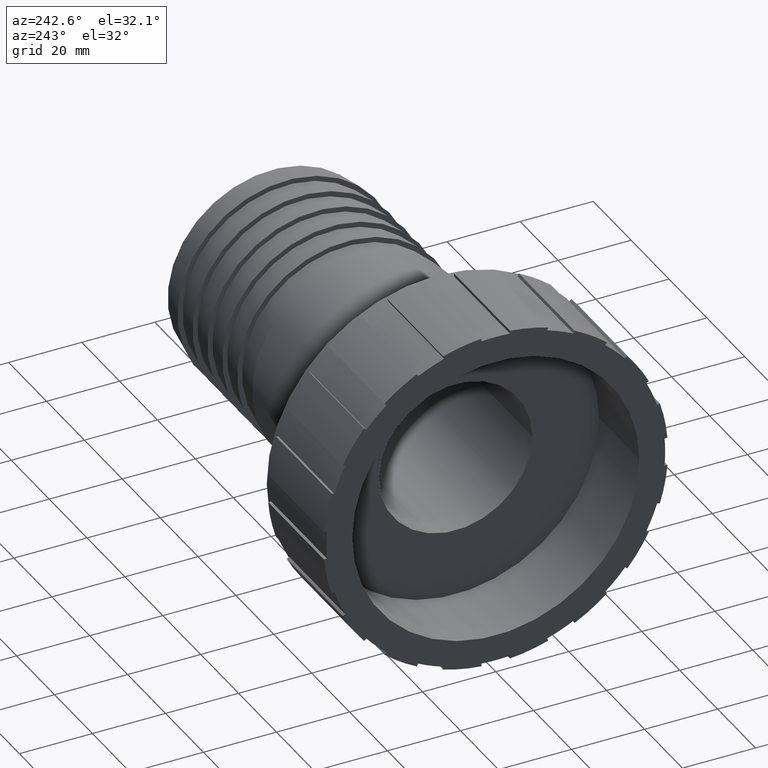
[diagram: clean part render]
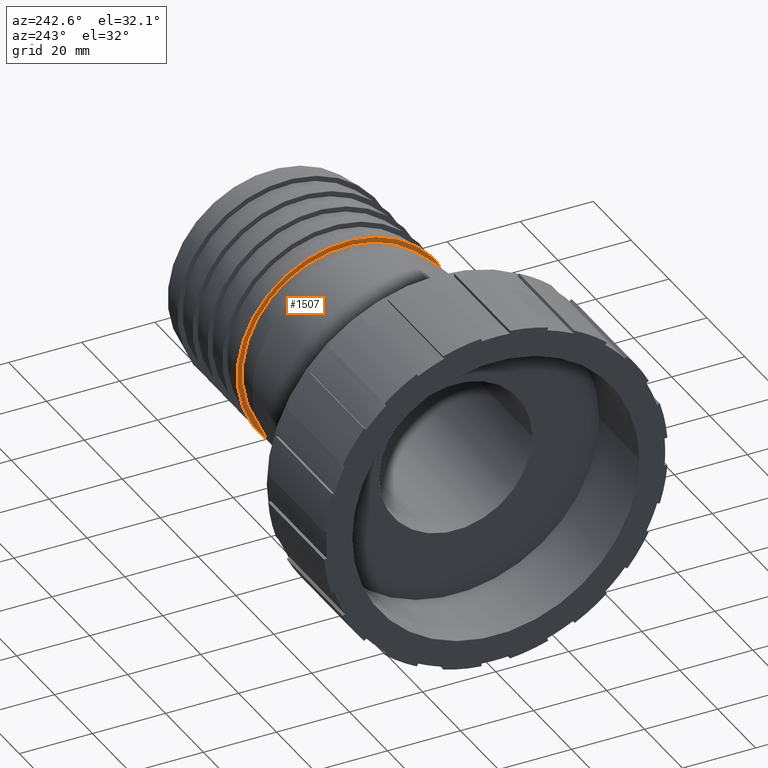
[diagram: same view with one face highlighted and labeled with its STEP entity id]
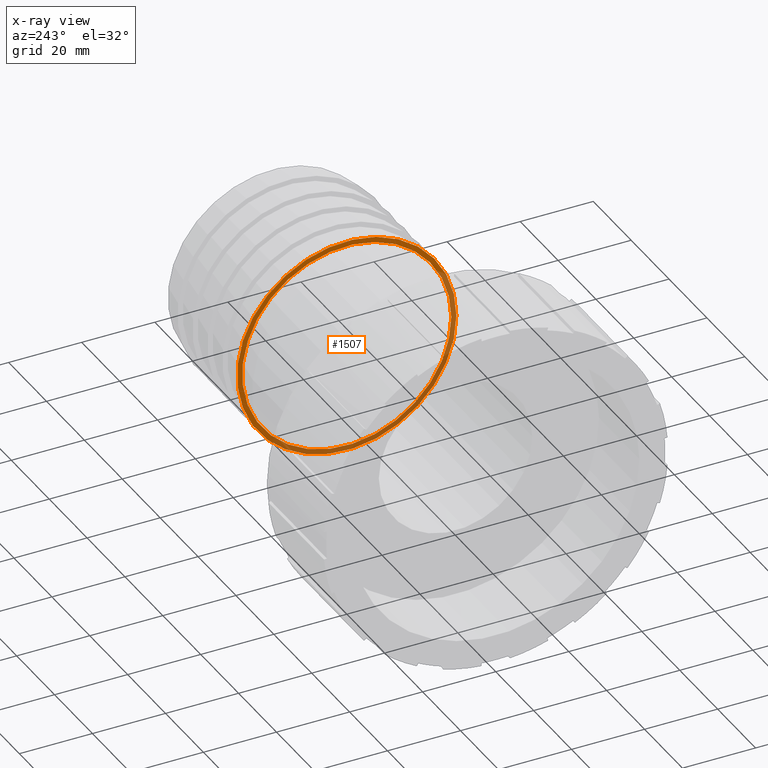
[diagram: x-ray of the same camera — body ghosted, the highlighted face saturated]
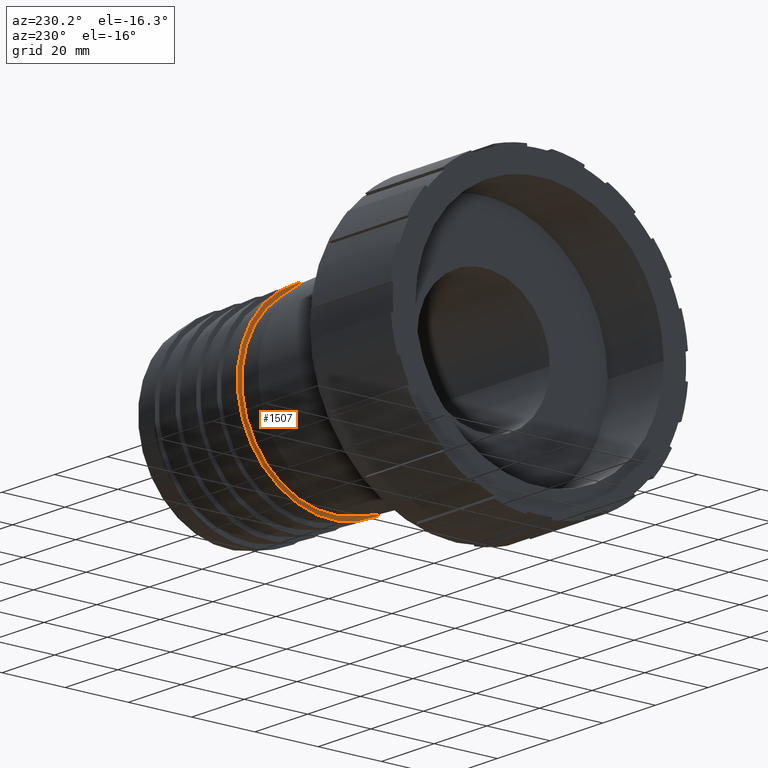
[diagram: same view with one face highlighted and labeled with its STEP entity id]
A machine part, auxiliary view. The second image highlights one B-rep face of the part: STEP entity #1507.
The next image is the same camera in x-ray: the body ghosted, the highlighted face saturated — about 45% of this face is hidden behind the body in this view.
A second angle (auxiliary view) of the same face is appended — the face is thin or edge-on in the first view.
In plain terms, the highlighted planar face has unit normal (-1, 0, 0).
Its self-contained STEP definition (entity closure, byte-faithful):
#59=FACE_BOUND('',#328,.T.);
#142=CIRCLE('',#1673,30.);
#143=CIRCLE('',#1675,28.6128944184267);
#226=FACE_OUTER_BOUND('',#327,.T.);
#327=EDGE_LOOP('',(#1363));
#328=EDGE_LOOP('',(#1364));
#733=VERTEX_POINT('',#2577);
#734=VERTEX_POINT('',#2580);
#944=EDGE_CURVE('',#733,#733,#142,.T.);
#945=EDGE_CURVE('',#734,#734,#143,.T.);
#1363=ORIENTED_EDGE('',*,*,#944,.T.);
#1364=ORIENTED_EDGE('',*,*,#945,.F.);
#1425=PLANE('',#1674);
#1507=ADVANCED_FACE('',(#226,#59),#1425,.T.);
#1673=AXIS2_PLACEMENT_3D('',#2578,#2131,#2132);
#1674=AXIS2_PLACEMENT_3D('',#2579,#2133,#2134);
#1675=AXIS2_PLACEMENT_3D('',#2581,#2135,#2136);
#2131=DIRECTION('center_axis',(-1.,0.,0.));
#2132=DIRECTION('ref_axis',(0.,0.,1.));
#2133=DIRECTION('center_axis',(-1.,0.,0.));
#2134=DIRECTION('ref_axis',(0.,0.,1.));
#2135=DIRECTION('center_axis',(-1.,0.,0.));
#2136=DIRECTION('ref_axis',(0.,0.,1.));
#2577=CARTESIAN_POINT('',(78.6666666666667,-30.,0.));
#2578=CARTESIAN_POINT('Origin',(78.6666666666667,0.,0.));
#2579=CARTESIAN_POINT('Origin',(78.6666666666667,-28.6128944184267,0.));
#2580=CARTESIAN_POINT('',(78.6666666666667,-28.6128944184267,0.));
#2581=CARTESIAN_POINT('Origin',(78.6666666666667,0.,0.));